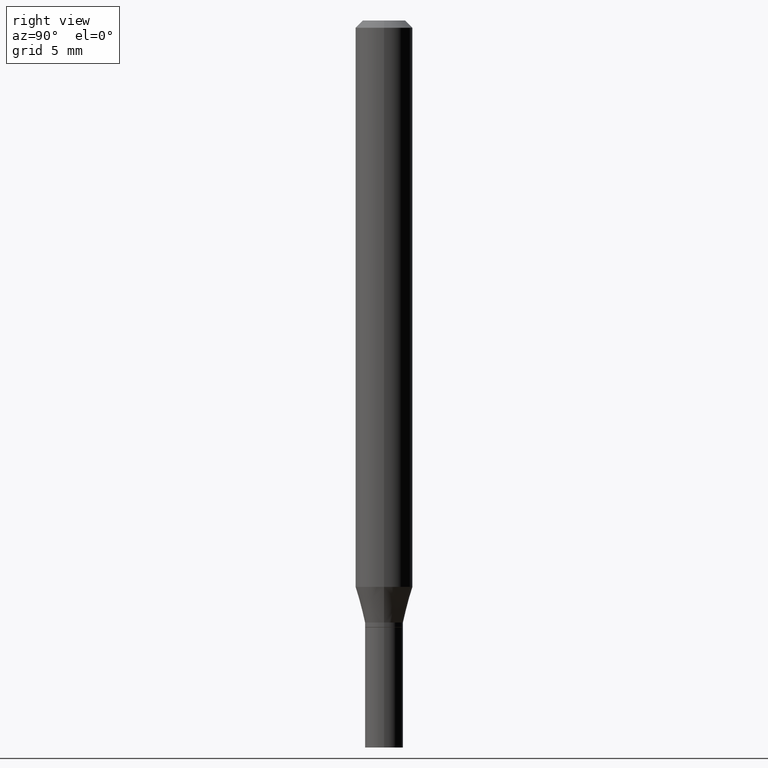
[diagram: clean part render]
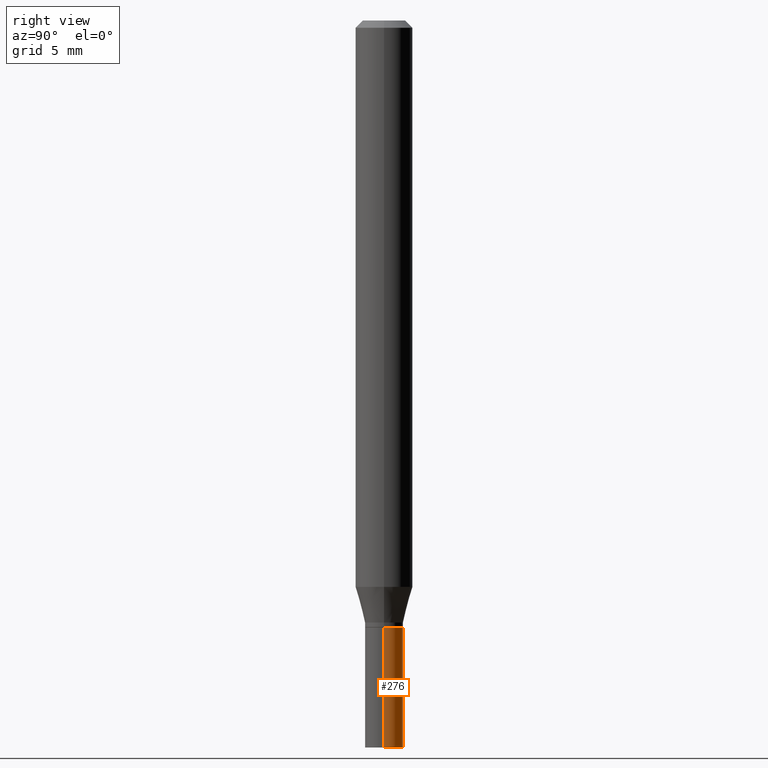
[diagram: same view with one face highlighted and labeled with its STEP entity id]
A machine part, right view. The second image highlights one B-rep face of the part: STEP entity #276.
In plain terms, the highlighted cylindrical surface (edge-blend (fillet) strip) has radius 0.9995 mm, axis along (-0, 0, 1).
Its self-contained STEP definition (entity closure, byte-faithful):
#21 = DIRECTION ( 'NONE',  ( -2.445468806185136597E-29, 3.491481338843145583E-15, 1.000000000000000000 ) ) ;
#22 = CARTESIAN_POINT ( 'NONE',  ( 0.03935000000000000303, -5.512001589631673094E-15, -1.500000000000000222 ) ) ;
#46 = EDGE_CURVE ( 'NONE', #179, #148, #451, .T. ) ;
#53 = EDGE_LOOP ( 'NONE', ( #454, #97, #418, #63 ) ) ;
#60 = FACE_OUTER_BOUND ( 'NONE', #53, .T. ) ;
#63 = ORIENTED_EDGE ( 'NONE', *, *, #101, .F. ) ;
#97 = ORIENTED_EDGE ( 'NONE', *, *, #46, .T. ) ;
#101 = EDGE_CURVE ( 'NONE', #135, #152, #296, .T. ) ;
#102 = CARTESIAN_POINT ( 'NONE',  ( 0.03935000000000000303, -2.747795813669546211E-16, 1.918775561275701074E-30 ) ) ;
#111 = DIRECTION ( 'NONE',  ( 1.000000000000000000, -6.982962677686266711E-15, 4.876176775795936353E-29 ) ) ;
#113 = CIRCLE ( 'NONE', #280, 0.03935000000000000303 ) ;
#120 = AXIS2_PLACEMENT_3D ( 'NONE', #159, #311, #271 ) ;
#135 = VERTEX_POINT ( 'NONE', #22 ) ;
#144 = CARTESIAN_POINT ( 'NONE',  ( -0.03935000000000000303, 2.795985665215994447E-16, -1.935600958015305291E-30 ) ) ;
#148 = VERTEX_POINT ( 'NONE', #201 ) ;
#152 = VERTEX_POINT ( 'NONE', #350 ) ;
#159 = CARTESIAN_POINT ( 'NONE',  ( 3.061726945343791391E-29, -4.371334636231619274E-15, -1.252000000000000224 ) ) ;
#179 = VERTEX_POINT ( 'NONE', #458 ) ;
#182 = DIRECTION ( 'NONE',  ( 1.000000000000000000, -6.982962677686269077E-15, 0.000000000000000000 ) ) ;
#194 = VECTOR ( 'NONE', #425, 39.37007874015748143 ) ;
#201 = CARTESIAN_POINT ( 'NONE',  ( -0.03935000000000000303, -4.524679755726570119E-15, -1.252000000000000224 ) ) ;
#256 = DIRECTION ( 'NONE',  ( -2.445468806185136877E-29, 3.491481338843145188E-15, 1.000000000000000000 ) ) ;
#261 = CYLINDRICAL_SURFACE ( 'NONE', #321, 0.03935000000000000303 ) ;
#271 = DIRECTION ( 'NONE',  ( 1.000000000000000000, -6.982962677686269077E-15, 0.000000000000000000 ) ) ;
#276 = ADVANCED_FACE ( 'NONE', ( #60 ), #261, .T. ) ;
#280 = AXIS2_PLACEMENT_3D ( 'NONE', #306, #370, #182 ) ;
#296 = LINE ( 'NONE', #102, #442 ) ;
#306 = CARTESIAN_POINT ( 'NONE',  ( 3.668203209277704895E-29, -5.237222008264718177E-15, -1.500000000000000222 ) ) ;
#311 = DIRECTION ( 'NONE',  ( -2.445468806185136597E-29, 3.491481338843145583E-15, 1.000000000000000000 ) ) ;
#319 = EDGE_CURVE ( 'NONE', #135, #179, #113, .T. ) ;
#321 = AXIS2_PLACEMENT_3D ( 'NONE', #333, #21, #111 ) ;
#327 = CIRCLE ( 'NONE', #120, 0.03935000000000000303 ) ;
#333 = CARTESIAN_POINT ( 'NONE',  ( 0.000000000000000000, 0.000000000000000000, 0.000000000000000000 ) ) ;
#350 = CARTESIAN_POINT ( 'NONE',  ( 0.03935000000000000303, -4.646114217598574191E-15, -1.252000000000000224 ) ) ;
#370 = DIRECTION ( 'NONE',  ( -2.445468806185136597E-29, 3.491481338843145583E-15, 1.000000000000000000 ) ) ;
#403 = EDGE_CURVE ( 'NONE', #152, #148, #327, .T. ) ;
#418 = ORIENTED_EDGE ( 'NONE', *, *, #403, .F. ) ;
#425 = DIRECTION ( 'NONE',  ( -2.445468806185136877E-29, 3.491481338843145188E-15, 1.000000000000000000 ) ) ;
#442 = VECTOR ( 'NONE', #256, 39.37007874015748143 ) ;
#451 = LINE ( 'NONE', #144, #194 ) ;
#454 = ORIENTED_EDGE ( 'NONE', *, *, #319, .T. ) ;
#458 = CARTESIAN_POINT ( 'NONE',  ( -0.03935000000000000303, -4.524679755726570119E-15, -1.500000000000000222 ) ) ;